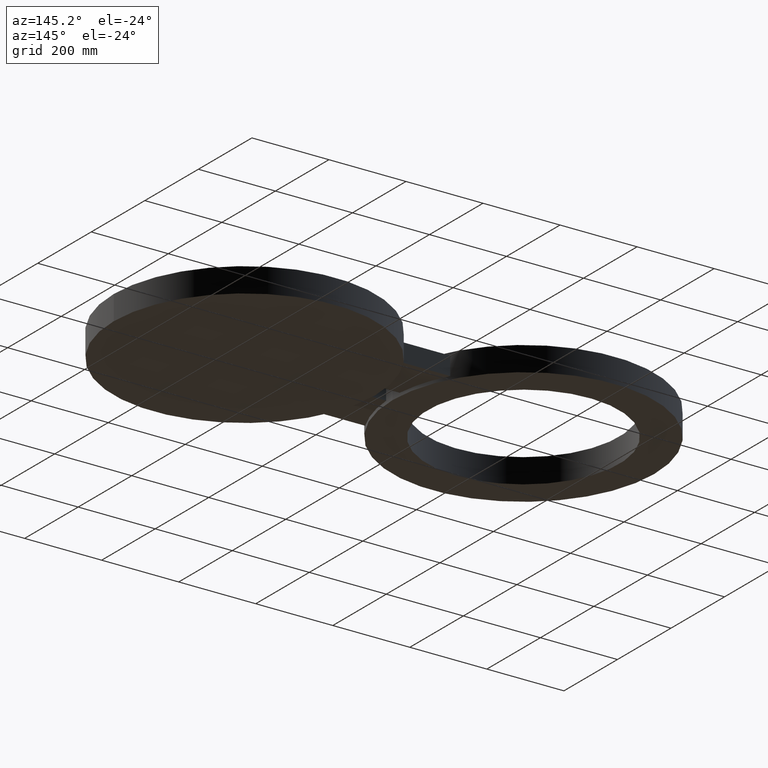
[diagram: clean part render]
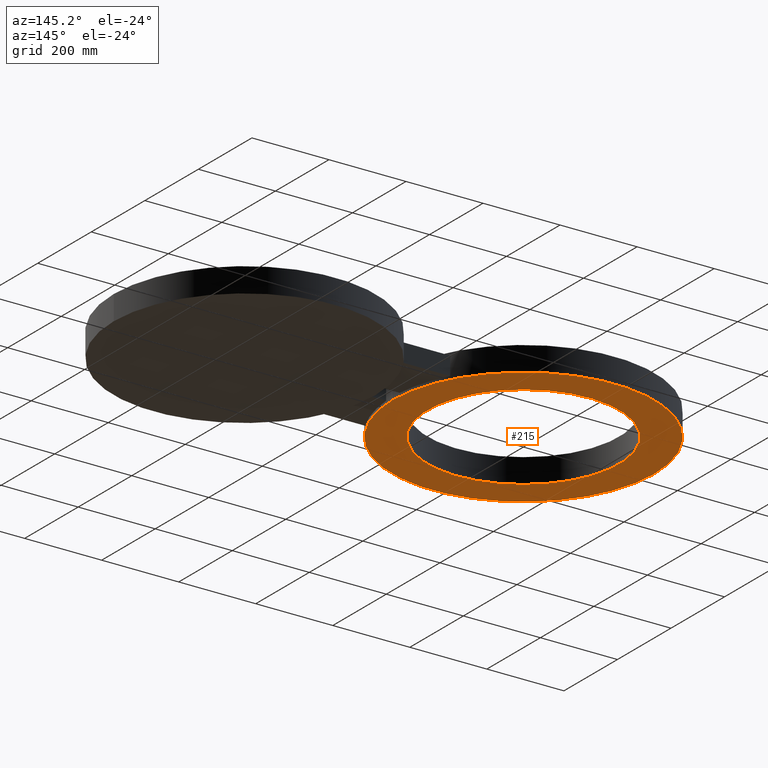
[diagram: same view with one face highlighted and labeled with its STEP entity id]
A machine part, auxiliary view. The second image highlights one B-rep face of the part: STEP entity #215.
In plain terms, the highlighted planar face has unit normal (0, 0, 1).
Its self-contained STEP definition (entity closure, byte-faithful):
#125=AXIS2_PLACEMENT_3D('Circle Axis2P3D',#123,#124,$) ;
#186=AXIS2_PLACEMENT_3D('Plane Axis2P3D',#183,#184,#185) ;
#190=AXIS2_PLACEMENT_3D('Circle Axis2P3D',#188,#189,$) ;
#199=AXIS2_PLACEMENT_3D('Circle Axis2P3D',#197,#198,$) ;
#208=AXIS2_PLACEMENT_3D('Circle Axis2P3D',#206,#207,$) ;
#118=CARTESIAN_POINT('Vertex',(-13.3750000001,-4.3017280879E-015,-1.25000000001)) ;
#123=CARTESIAN_POINT('Axis2P3D Location',(0.,0.,-1.25000000001)) ;
#127=CARTESIAN_POINT('Vertex',(13.3750000001,0.,-1.25000000001)) ;
#183=CARTESIAN_POINT('Axis2P3D Location',(0.,0.,-1.25000000001)) ;
#188=CARTESIAN_POINT('Axis2P3D Location',(0.,0.,-1.25000000001)) ;
#197=CARTESIAN_POINT('Axis2P3D Location',(-2.79741234551E-016,-1.1189649382E-015,-1.25000000001)) ;
#201=CARTESIAN_POINT('Vertex',(8.58275745532,-4.68878176757,-1.25000000001)) ;
#203=CARTESIAN_POINT('Vertex',(-8.58275745532,4.68878176757,-1.25000000001)) ;
#206=CARTESIAN_POINT('Axis2P3D Location',(8.39223703654E-016,-1.1189649382E-015,-1.25000000001)) ;
#124=DIRECTION('Axis2P3D Direction',(0.,0.,0.0393700787402)) ;
#184=DIRECTION('Axis2P3D Direction',(0.,0.,0.0393700787402)) ;
#185=DIRECTION('Axis2P3D XDirection',(0.0393700787402,0.,0.)) ;
#189=DIRECTION('Axis2P3D Direction',(0.,0.,0.0393700787402)) ;
#198=DIRECTION('Axis2P3D Direction',(0.,0.,0.0393700787402)) ;
#207=DIRECTION('Axis2P3D Direction',(0.,0.,0.0393700787402)) ;
#194=ORIENTED_EDGE('',*,*,#129,.F.) ;
#195=ORIENTED_EDGE('',*,*,#192,.F.) ;
#212=ORIENTED_EDGE('',*,*,#205,.T.) ;
#213=ORIENTED_EDGE('',*,*,#210,.T.) ;
#214=FACE_BOUND('',#211,.T.) ;
#215=ADVANCED_FACE('PartBody',(#196,#214),#187,.F.) ;
#126=CIRCLE('generated circle',#125,13.3750000001) ;
#191=CIRCLE('generated circle',#190,13.3750000001) ;
#200=CIRCLE('generated circle',#199,9.78000000004) ;
#209=CIRCLE('generated circle',#208,9.78000000004) ;
#129=EDGE_CURVE('',#119,#128,#126,.T.) ;
#192=EDGE_CURVE('',#128,#119,#191,.T.) ;
#205=EDGE_CURVE('',#202,#204,#200,.T.) ;
#210=EDGE_CURVE('',#204,#202,#209,.T.) ;
#193=EDGE_LOOP('',(#194,#195)) ;
#211=EDGE_LOOP('',(#212,#213)) ;
#196=FACE_OUTER_BOUND('',#193,.T.) ;
#187=PLANE('',#186) ;
#119=VERTEX_POINT('',#118) ;
#128=VERTEX_POINT('',#127) ;
#202=VERTEX_POINT('',#201) ;
#204=VERTEX_POINT('',#203) ;